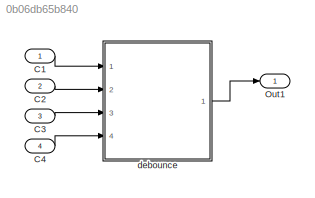
MODEL slx_0b06db65b840
KIND model
CONFIG AbsTol = auto
CONFIG EnableMultiTasking = on
CONFIG FixedStep = auto
CONFIG MaxStep = auto
CONFIG MinStep = auto
CONFIG RelTol = 1e-3
CONFIG SampleTimeConstraint = Unconstrained
CONFIG Solver = FixedStepDiscrete
CONFIG SolverName = FixedStepDiscrete
CONFIG StartTime = 0.0
CONFIG StopTime = 10.0
BLOCK [Inport] C1
  IconDisplay = Port number
  OutDataTypeStr = boolean
BLOCK [Inport] C2
  IconDisplay = Port number
  OutDataTypeStr = boolean
  Port = 2
BLOCK [Inport] C3
  IconDisplay = Port number
  OutDataTypeStr = boolean
  Port = 3
BLOCK [Inport] C4
  IconDisplay = Port number
  OutDataTypeStr = boolean
  Port = 4
BLOCK [Outport] Out1
  IconDisplay = Port number
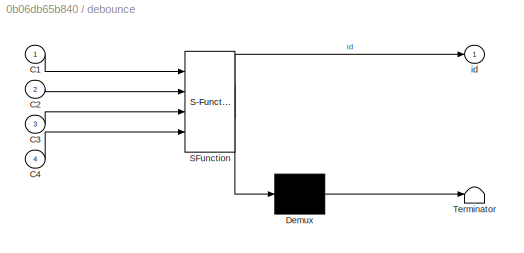
BLOCK [SubSystem] debounce
  ErrorFcn = Stateflow.Translate.translate
  PermitHierarchicalResolution = ExplicitOnly
  Ports = [4, 1]
  RequestExecContextInheritance = off
  SFBlockType = Chart
  TreatAsAtomicUnit = on
  Variant = off
BLOCK [Demux] debounce/ Demux 
  Outputs = 1
  Ports = [1, 1]
BLOCK [S-Function] debounce/ SFunction 
  EnableBusSupport = on
  FunctionName = sf_sfun
  PortCounts = [4 2]
  Ports = [4, 2]
  SFcnIsStateOwnerBlock = off
  SFunctionDeploymentMode = off
  Tag = Stateflow S-Function debounceNoActions 1
BLOCK [Terminator] debounce/ Terminator 
BLOCK [Inport] debounce/C1
  IconDisplay = Port number
BLOCK [Inport] debounce/C2
  IconDisplay = Port number
  Port = 2
BLOCK [Inport] debounce/C3
  IconDisplay = Port number
  Port = 3
BLOCK [Inport] debounce/C4
  IconDisplay = Port number
  Port = 4
BLOCK [Outport] debounce/id
  IconDisplay = Port number
LINE C1:1 -> debounce:1
LINE C2:1 -> debounce:2
LINE C3:1 -> debounce:3
LINE C4:1 -> debounce:4
LINE debounce:1 -> Out1:1
CHART debounce states=6 transitions=7
  STATE_LABEL 'To'
  STATE_LABEL 'To_on\nen: id = 2;\n'
  STATE_LABEL 'To_off\nen: id = 3;\n'
  STATE_LABEL 'To_on\nen: id = 2;\n'
  STATE_LABEL 'To_off\nen: id = 3;\n'
  STATE_LABEL 'Off\nen: id = 1;\n'
  STATE_LABEL 'OnParent'
  STATE_LABEL 'On\nen:  id = 4;\n'
  STATE_LABEL 'On\nen:  id = 4;\n'
